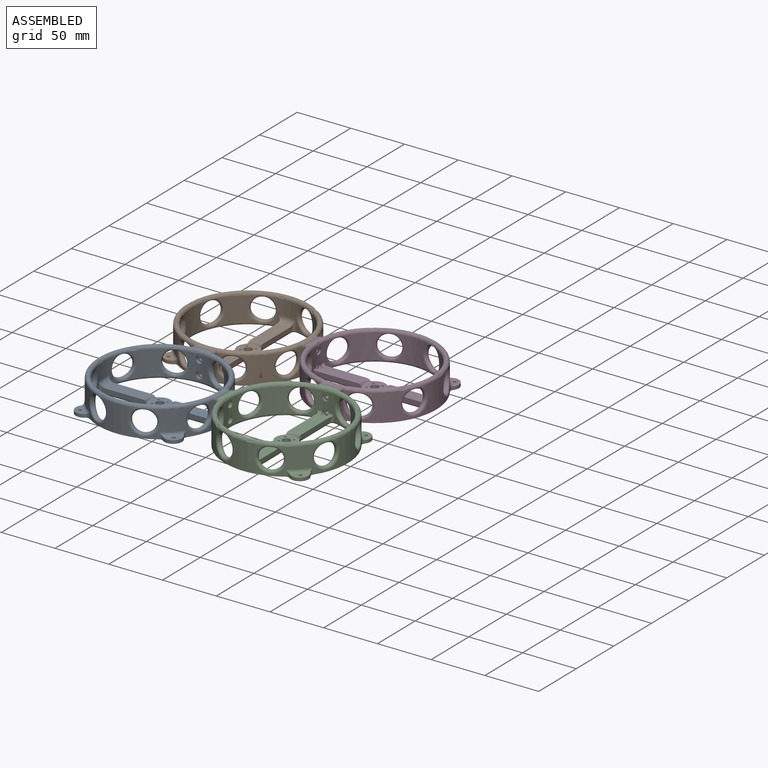
[diagram: assembled view]
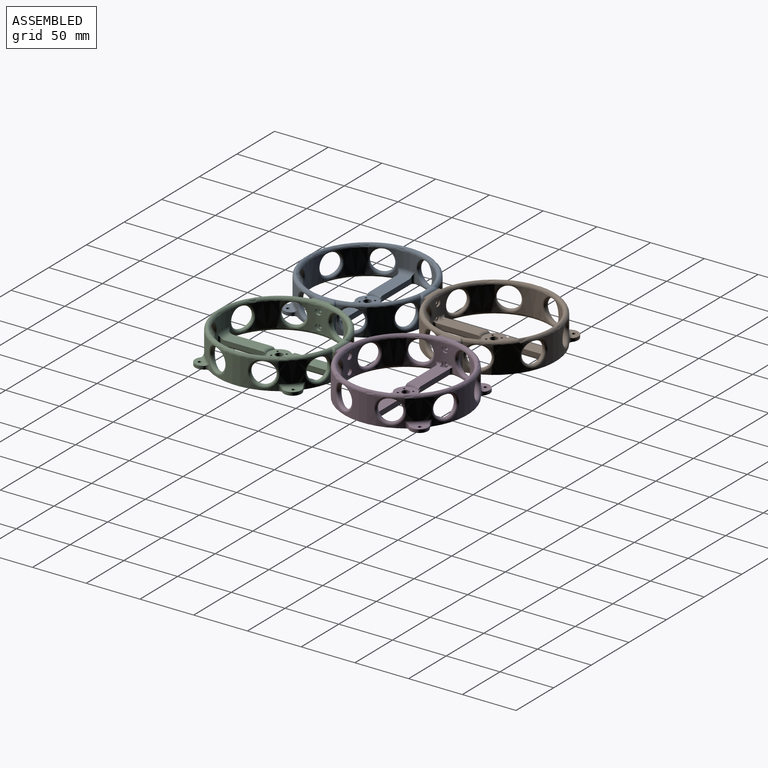
[diagram: assembled view, second angle]
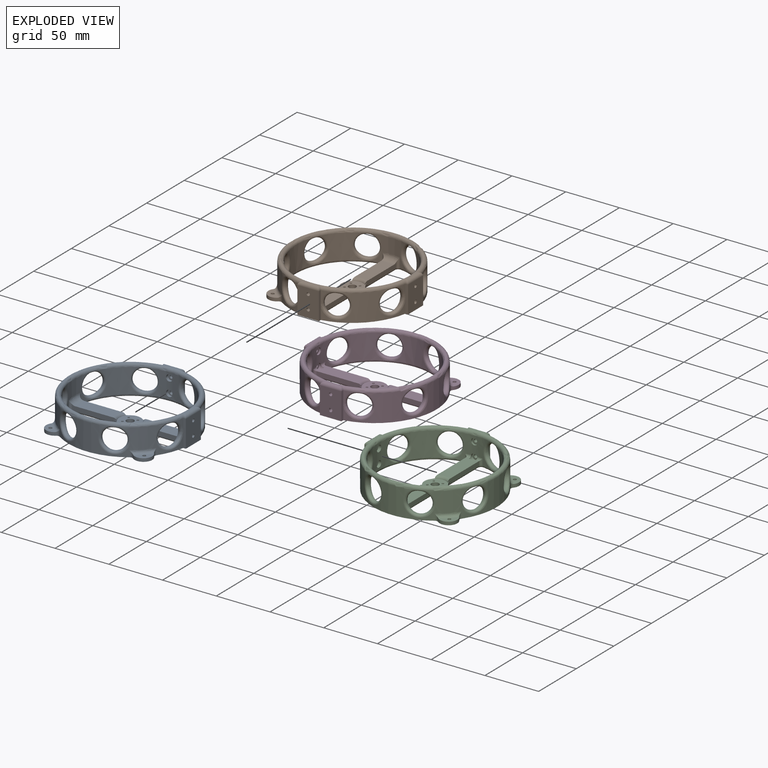
[diagram: exploded view]
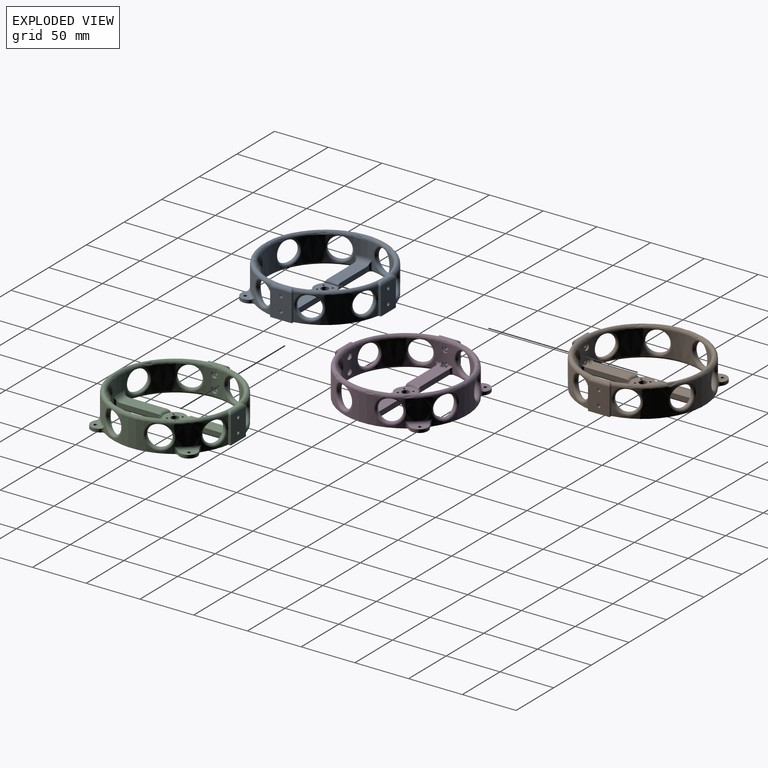
[diagram: exploded view, second angle]
ASSEMBLY  parts=4 mates=3
PART A: 153 faces, bbox 120.8x122.1x28.2 mm
  f0: plane 37.42x24.68mm, normal (0,0,1), area 417.3mm2, adj f34,f37,f48,f152
  f1: cylinder r=10mm len=11.09mm, axis (0,0,-1), area 25.7mm2, adj f58,f142,f143,f145
  f2: cylinder r=10mm len=11.09mm, axis (0,0,-1), area 25.7mm2, adj f64,f142,f147,f149
  f3: cylinder r=1mm len=4mm, axis (0,0,-1), area 25.1mm2, adj f33,f142
  f4: cylinder r=1mm len=4mm, axis (0,0,-1), area 25.1mm2, adj f33,f142
  f5: cylinder r=1mm len=4mm, axis (0,0,-1), area 25.1mm2, adj f33,f142
  f6: cylinder r=3.5mm len=7mm, axis (0,0,-1), area 88mm2, adj f33,f142
  f7: cylinder r=1mm len=4mm, axis (0,0,-1), area 25.1mm2, adj f33,f142
  f8: cylinder r=57.25mm len=9.47mm, axis (0,0,-1), area 22.3mm2, adj f29,f52,f136
  f9: cylinder r=57.25mm len=9.47mm, axis (0,0,-1), area 22.3mm2, adj f27,f52,f140
  f10: cylinder r=57.25mm len=9.47mm, axis (0,0,-1), area 22.3mm2, adj f31,f55,f128
  f11: cylinder r=57.25mm len=9.47mm, axis (0,0,-1), area 22.3mm2, adj f25,f55,f132
  f12: torus R=50.25mm, axis (0,0,1), area 12.6mm2, adj f13,f14,f44,f113
  f13: cylinder r=52.25mm len=36.95mm, axis (0,0,-1), area 376.2mm2, adj f12,f15,f44,f45,f57,f63,f69,f104
  f14: plane 40.21x25.86mm, normal (0,0,1), area 445.5mm2, adj f12,f15,f35,f36,f44,f45,f92,f113
  f15: torus R=50.25mm, axis (0,0,1), area 13.8mm2, adj f13,f14,f45,f113
  f16: cylinder r=52.25mm len=36.95mm, axis (0,0,-1), area 511.7mm2, adj f57,f63,f94,f96
  f17: cylinder r=52.25mm len=36.95mm, axis (0,0,-1), area 511.7mm2, adj f57,f63,f96,f98
  f18: cylinder r=52.25mm len=36.95mm, axis (0,0,-1), area 361.3mm2, adj f46,f47,f48,f57,f63,f69,f98,f100
  f19: cylinder r=52.25mm len=36.95mm, axis (0,0,-1), area 511.7mm2, adj f57,f69,f100,f102
  f20: cylinder r=52.25mm len=36.95mm, axis (0,0,-1), area 455.2mm2, adj f57,f69,f102,f106,f115,f117
  f21: cylinder r=52.25mm len=36.95mm, axis (0,0,-1), area 511.7mm2, adj f57,f63,f94,f104
  f22: cylinder r=52.25mm len=36.95mm, axis (0,0,-1), area 511.7mm2, adj f57,f69,f106,f108
  f23: plane 13.33x6.32mm, normal (0,0,1), area 10.5mm2, adj f50,f51,f56,f57
  f24: cylinder r=57.25mm len=114.5mm, axis (0,0,-1), area 3153.1mm2, adj f25,f31,f33,f55,f70,f71,f72,f73
  f25: plane 25.01x2.3mm, normal (0.38,-0.92,0), area 62mm2, adj f11,f24,f26,f33,f54,f130
  f26: plane 25x18.48mm, normal (0.92,0.38,0), area 485.9mm2, adj f25,f27,f33,f49,f91,f93
  f27: plane 25.01x2.3mm, normal (-0.38,0.92,0), area 62mm2, adj f9,f26,f28,f33,f53,f141
  f28: cylinder r=57.25mm len=60.59mm, axis (0,0,-1), area 771.7mm2, adj f27,f29,f33,f52,f135,f139
  f29: plane 25.01x2.3mm, normal (0.92,0.38,0), area 62mm2, adj f8,f28,f30,f33,f51,f134
  f30: plane 25x18.48mm, normal (-0.38,0.92,0), area 484.4mm2, adj f29,f31,f33,f50,f88,f89,f90
  f31: plane 25.01x2.3mm, normal (-0.92,-0.38,0), area 62mm2, adj f10,f24,f30,f33,f56,f129
  f32: plane 13.33x6.32mm, normal (0,0,1), area 10.5mm2, adj f49,f53,f54,f57
  f33: plane 120.15x119.21mm, normal (0,0,-1), area 2277.7mm2, adj f3,f4,f5,f6,f7,f24,f25,f26
  f34: plane 38.61x16.09mm, normal (0.38,-0.92,0), area 157.3mm2, adj f0,f46,f48,f59,f142,f143,f152
  f35: plane 38.61x16.09mm, normal (0.38,-0.92,0), area 156.6mm2, adj f14,f44,f60,f142,f145,f151
  f36: plane 38.61x16.09mm, normal (-0.38,0.92,0), area 156.6mm2, adj f14,f45,f65,f142,f147,f151
  f37: plane 38.61x16.09mm, normal (-0.38,0.92,0), area 157.3mm2, adj f0,f47,f48,f66,f142,f149,f152
  f38: cylinder r=1.5mm len=3mm, axis (0,0,-1), area 28.3mm2, adj f33,f40,f78
  f39: cylinder r=8.15mm len=15.38mm, axis (0,0,-1), area 72.6mm2, adj f33,f40,f75,f76,f77,f79
  f40: plane 14.99x9.86mm, normal (0,0,1), area 67.7mm2, adj f38,f39,f76,f79
  f41: cylinder r=8.15mm len=15.38mm, axis (0,0,-1), area 72.6mm2, adj f33,f43,f70,f71,f72,f74
  f42: cylinder r=1.5mm len=3mm, axis (0,0,-1), area 28.3mm2, adj f33,f43,f73
  f43: plane 14.99x9.86mm, normal (0,0,1), area 67.7mm2, adj f41,f42,f71,f74
  f44: cylinder r=2mm len=6mm, axis (0,0,-1), area 16.2mm2, adj f12,f13,f14,f35,f62
  f45: cylinder r=2mm len=6mm, axis (0,0,-1), area 16.2mm2, adj f13,f14,f15,f36,f67
  f46: cylinder r=2mm len=9mm, axis (0,0,-1), area 23.9mm2, adj f18,f34,f48,f61
  f47: cylinder r=2mm len=9mm, axis (0,0,-1), area 23.9mm2, adj f18,f37,f48,f68
  f48: torus R=47.25mm, axis (0,0,1), area 103.6mm2, adj f0,f18,f34,f37,f46,f47
  f49: cylinder r=3mm len=19.63mm, axis (0.38,-0.92,0), area 84mm2, adj f26,f32,f53,f54
  f50: cylinder r=3mm len=19.63mm, axis (0.92,0.38,0), area 84mm2, adj f23,f30,f51,f56
  f51: cylinder r=3mm len=5.41mm, axis (0.38,-0.92,0), area 10.7mm2, adj f23,f29,f50,f52,f57
  f52: torus R=54.25mm, axis (0,0,1), area 295.7mm2, adj f8,f9,f28,f51,f53,f57,f137,f138
  f53: cylinder r=3mm len=5.41mm, axis (0.92,0.38,0), area 10.7mm2, adj f27,f32,f49,f52,f57
  f54: cylinder r=3mm len=5.41mm, axis (-0.92,-0.38,0), area 10.7mm2, adj f25,f32,f49,f55,f57
  f55: torus R=54.25mm, axis (0,0,1), area 1041.1mm2, adj f10,f11,f24,f54,f56,f57,f119,f121
  f56: cylinder r=3mm len=5.41mm, axis (-0.38,0.92,0), area 10.7mm2, adj f23,f31,f50,f55,f57
  f57: torus R=55.25mm, axis (0,0,1), area 1420.4mm2, adj f13,f16,f17,f18,f19,f20,f21,f22
  f58: torus R=8mm, axis (0,0,1), area 43.4mm2, adj f1,f33,f144,f146
  f59: cylinder r=2mm len=40.2mm, axis (0.92,0.38,0), area 123.4mm2, adj f33,f34,f61,f144
  f60: cylinder r=2mm len=40.2mm, axis (0.92,0.38,0), area 123.4mm2, adj f33,f35,f62,f146
  f61: torus R=4mm, axis (0,0,1), area 14.8mm2, adj f33,f46,f59,f63
  f62: torus R=4mm, axis (0,0,1), area 14.8mm2, adj f33,f44,f60,f63
  f63: torus R=54.25mm, axis (0,0,1), area 469.6mm2, adj f13,f16,f17,f18,f21,f33,f61,f62
  f64: torus R=8mm, axis (0,0,1), area 43.4mm2, adj f2,f33,f148,f150
  f65: cylinder r=2mm len=40.2mm, axis (-0.92,-0.38,0), area 123.4mm2, adj f33,f36,f67,f148
  f66: cylinder r=2mm len=40.2mm, axis (-0.92,-0.38,0), area 123.4mm2, adj f33,f37,f68,f150
  f67: torus R=4mm, axis (0,0,1), area 14.8mm2, adj f33,f45,f65,f69
  f68: torus R=4mm, axis (0,0,1), area 14.8mm2, adj f33,f47,f66,f69
  f69: torus R=54.25mm, axis (0,0,1), area 469.6mm2, adj f13,f18,f19,f20,f22,f33,f67,f68
  f70: cylinder r=3mm len=6mm, axis (0,0,1), area 17.7mm2, adj f24,f33,f41,f71
  f71: torus R=60.25mm, axis (0,0,1), area 41.4mm2, adj f24,f41,f43,f70,f73
  f72: cylinder r=3mm len=6mm, axis (0,0,1), area 17.7mm2, adj f24,f33,f41,f74
  f73: bspline ~3.38x3.17mm, area 3.4mm2, adj f24,f42,f71,f74
  f74: torus R=60.25mm, axis (0,0,1), area 41.4mm2, adj f24,f41,f43,f72,f73
  f75: cylinder r=3mm len=6mm, axis (0,0,1), area 17.7mm2, adj f24,f33,f39,f76
  f76: torus R=60.25mm, axis (0,0,1), area 41.4mm2, adj f24,f39,f40,f75,f78
  f77: cylinder r=3mm len=6mm, axis (0,0,1), area 17.7mm2, adj f24,f33,f39,f79
  f78: bspline ~3.38x3.17mm, area 3.4mm2, adj f24,f38,f76,f79
  f79: torus R=60.25mm, axis (0,0,1), area 41.4mm2, adj f24,f39,f40,f77,f78
  f80: cylinder r=10mm len=20mm, axis (0.71,0.71,0), area 64.5mm2, adj f108,f109,f138,f139,f140,f141
  f81: cylinder r=10mm len=20mm, axis (0,1,0), area 64.5mm2, adj f106,f107,f134,f135,f136,f137
  f82: cylinder r=10mm len=20mm, axis (1,0,0), area 64.5mm2, adj f104,f105,f130,f131,f132,f133
  f83: cylinder r=10mm len=20mm, axis (-0.71,0.71,0), area 64.5mm2, adj f102,f103,f126,f127,f128,f129
  f84: cylinder r=10mm len=20mm, axis (-1,0,0), area 65.9mm2, adj f100,f101,f124,f125
  f85: cylinder r=10mm len=20mm, axis (-0.71,-0.71,0), area 65.9mm2, adj f98,f99,f122,f123
  f86: cylinder r=10mm len=20mm, axis (0,-1,0), area 65.9mm2, adj f96,f97,f120,f121
  f87: cylinder r=10mm len=20mm, axis (0.71,-0.71,0), area 65.9mm2, adj f94,f95,f118,f119
  f88: cylinder r=1.5mm len=4.84mm, axis (-0.38,0.92,0), area 20.8mm2, adj f30,f89,f116
  f89: cylinder r=1.5mm len=4.84mm, axis (-0.38,0.92,0), area 20.8mm2, adj f30,f88,f116
  f90: cylinder r=1.5mm len=4.84mm, axis (-0.38,0.92,0), area 37.7mm2, adj f30,f114
  f91: cylinder r=1.5mm len=5.77mm, axis (0.92,0.38,0), area 47.1mm2, adj f26,f112
  f92: plane 5.36x2.23mm, normal (0.92,0.38,0), area 9.6mm2, adj f14,f113
  f93: cylinder r=1.5mm len=5.77mm, axis (0.92,0.38,0), area 47.1mm2, adj f26,f110
  f94: bspline ~22.98x16.61mm, area 168.8mm2, adj f16,f21,f87,f95
  f95: bspline ~8.29x8.14mm, area 20.4mm2, adj f57,f87,f94
  f96: bspline ~23.09x22.98mm, area 168.8mm2, adj f16,f17,f86,f97
  f97: bspline ~10.34x2.39mm, area 20.4mm2, adj f57,f86,f96
  f98: bspline ~22.98x16.61mm, area 168.8mm2, adj f17,f18,f85,f99
  f99: bspline ~8.29x8.14mm, area 20.4mm2, adj f57,f85,f98
  f100: bspline ~23.09x22.98mm, area 168.8mm2, adj f18,f19,f84,f101
  f101: bspline ~10.34x2.39mm, area 20.4mm2, adj f57,f84,f100
  f102: bspline ~22.98x16.61mm, area 168.8mm2, adj f19,f20,f83,f103
  f103: bspline ~8.29x8.14mm, area 20.4mm2, adj f57,f83,f102
  f104: bspline ~23.09x22.98mm, area 168.8mm2, adj f13,f21,f82,f105
  f105: bspline ~10.34x2.39mm, area 20.4mm2, adj f57,f82,f104
  f106: bspline ~23.09x22.98mm, area 168.8mm2, adj f20,f22,f81,f107
  f107: bspline ~10.34x2.39mm, area 20.4mm2, adj f57,f81,f106
  f108: bspline ~22.98x16.61mm, area 168.8mm2, adj f13,f22,f80,f109
  f109: bspline ~8.29x8.14mm, area 20.4mm2, adj f57,f80,f108
  f110: plane 6x5.54mm, normal (-0.92,-0.38,0), area 21.2mm2, adj f93,f111
  f111: cylinder r=3mm len=6.19mm, axis (-0.92,-0.38,0), area 31.8mm2, adj f13,f110
  f112: plane 6x5.54mm, normal (-0.92,-0.38,0), area 21.2mm2, adj f91,f113
  f113: cylinder r=3mm len=7.46mm, axis (-0.92,-0.38,0), area 59.2mm2, adj f12,f13,f14,f15,f92,f112
  f114: plane 6x5.54mm, normal (0.38,-0.92,0), area 21.2mm2, adj f90,f115
  f115: cylinder r=3mm len=6.57mm, axis (-0.38,0.92,0), area 50.6mm2, adj f20,f114
  f116: plane 6x5.54mm, normal (0.38,-0.92,0), area 19.8mm2, adj f88,f89,f117
  f117: cylinder r=3mm len=6.57mm, axis (-0.38,0.92,0), area 50.6mm2, adj f20,f116
  f118: bspline ~22.98x17.57mm, area 200.3mm2, adj f24,f87,f119
  f119: bspline ~8.46x8.46mm, area 21.8mm2, adj f55,f87,f118
  f120: bspline ~24.84x22.98mm, area 200.3mm2, adj f24,f86,f121
  f121: bspline ~11.07x2.34mm, area 21.8mm2, adj f55,f86,f120
  f122: bspline ~22.98x17.57mm, area 200.3mm2, adj f24,f85,f123
  f123: bspline ~8.46x8.46mm, area 21.8mm2, adj f55,f85,f122
  f124: bspline ~24.84x22.98mm, area 200.3mm2, adj f24,f84,f125
  f125: bspline ~11.07x2.34mm, area 21.8mm2, adj f55,f84,f124
  f126: bspline ~8.46x8.46mm, area 21.8mm2, adj f55,f83,f127,f128
  f127: bspline ~23x17.52mm, area 152.6mm2, adj f24,f83,f126,f129
  f128: bspline ~10.62x7.22mm, area 38.1mm2, adj f10,f83,f126,f129
  f129: bspline ~4.9x3.16mm, area 9.5mm2, adj f31,f83,f127,f128
  f130: bspline ~4.9x2.75mm, area 9.5mm2, adj f25,f82,f131,f132
  f131: bspline ~24.76x23mm, area 152.6mm2, adj f24,f82,f130,f133
  f132: bspline ~10.59x8.95mm, area 38.1mm2, adj f11,f82,f130,f133
  f133: bspline ~11.07x2.34mm, area 21.8mm2, adj f55,f82,f131,f132
  f134: bspline ~4.9x2.75mm, area 9.5mm2, adj f29,f81,f135,f136
  f135: bspline ~24.76x23mm, area 152.6mm2, adj f28,f81,f134,f137
  f136: bspline ~10.59x8.95mm, area 38.1mm2, adj f8,f81,f134,f137
  f137: bspline ~11.07x2.34mm, area 21.8mm2, adj f52,f81,f135,f136
  f138: bspline ~8.46x8.46mm, area 21.8mm2, adj f52,f80,f139,f140
  f139: bspline ~23x17.52mm, area 152.6mm2, adj f28,f80,f138,f141
  f140: bspline ~10.62x7.22mm, area 38.1mm2, adj f9,f80,f138,f141
  f141: bspline ~4.9x3.16mm, area 9.5mm2, adj f27,f80,f139,f140
  f142: plane 26.77x20.27mm, normal (0,0,1), area 269.6mm2, adj f1,f2,f3,f4,f5,f6,f7,f34
  f143: cylinder r=10mm len=6.31mm, axis (0,0,-1), area 12.9mm2, adj f1,f34,f142,f144
  f144: bspline ~6.32x3.79mm, area 15.2mm2, adj f58,f59,f143
  f145: cylinder r=10mm len=4.78mm, axis (0,0,-1), area 12.9mm2, adj f1,f35,f142,f146
  f146: bspline ~5.46x4.23mm, area 15.6mm2, adj f58,f60,f145
  f147: cylinder r=10mm len=6.31mm, axis (0,0,-1), area 12.9mm2, adj f2,f36,f142,f148
  f148: bspline ~6.32x3.79mm, area 15.2mm2, adj f64,f65,f147
  f149: cylinder r=10mm len=4.78mm, axis (0,0,-1), area 12.9mm2, adj f2,f37,f142,f150
  f150: bspline ~5.46x4.23mm, area 15.6mm2, adj f64,f66,f149
  f151: torus R=12.83mm, axis (0,0,1), area 46.5mm2, adj f14,f35,f36,f142
  f152: torus R=12.83mm, axis (0,0,1), area 46.5mm2, adj f0,f34,f37,f142
PART B: same geometry as A
PART C: same geometry as A
PART D: same geometry as A
PLACE A rot(axis=(0,0,-1),22.4deg) t=(25.98,-5.11,0.02)mm
PLACE B rot(axis=(0,0,-1),112.4deg) t=(25.8,112.59,0.04)mm
PLACE C rot(axis=(0,0,1),67.6deg) t=(143.68,-4.93,0)mm fixed
PLACE D rot(axis=(0,0,1),157.6deg) t=(143.5,112.77,0.06)mm
MATE fastened B.f30 <-> D.f26  axis (1,0,0) through (84.65,112.68,12.53)mm
MATE fastened A.f26 <-> C.f30  axis (1,0,0) through (84.83,-5.02,12.49)mm
MATE fastened B.f26 <-> A.f30  axis (0,-1,0) through (25.89,53.74,12.51)mm
